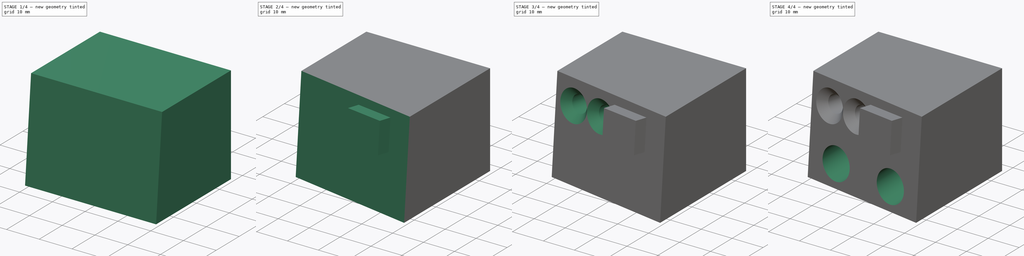
[diagram: build sequence overview — one tinted view per stage of 4, left to right]
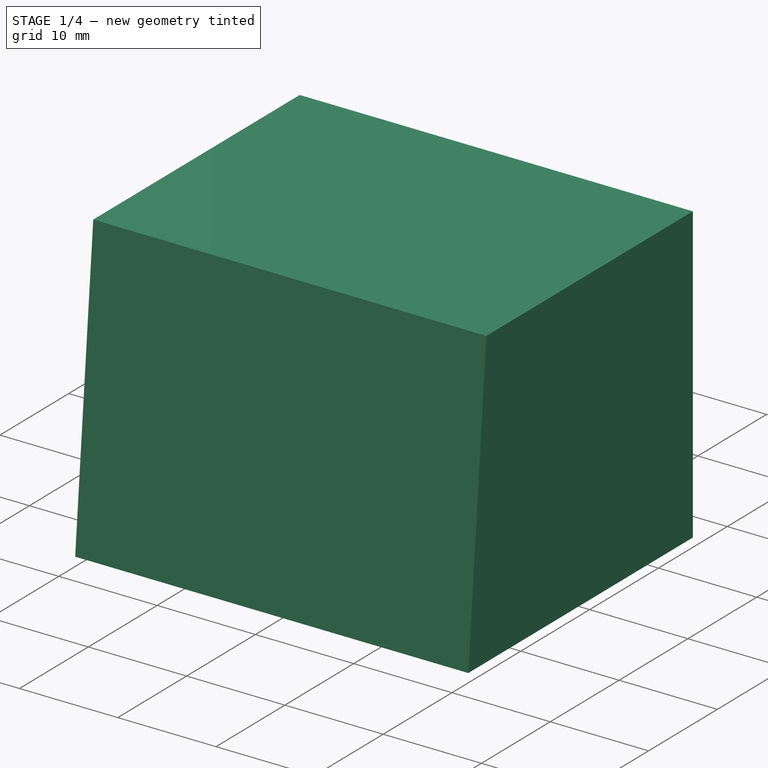
[diagram: stage 1 of 4 — iso view after this stage's code; geometry added in this stage tinted green]
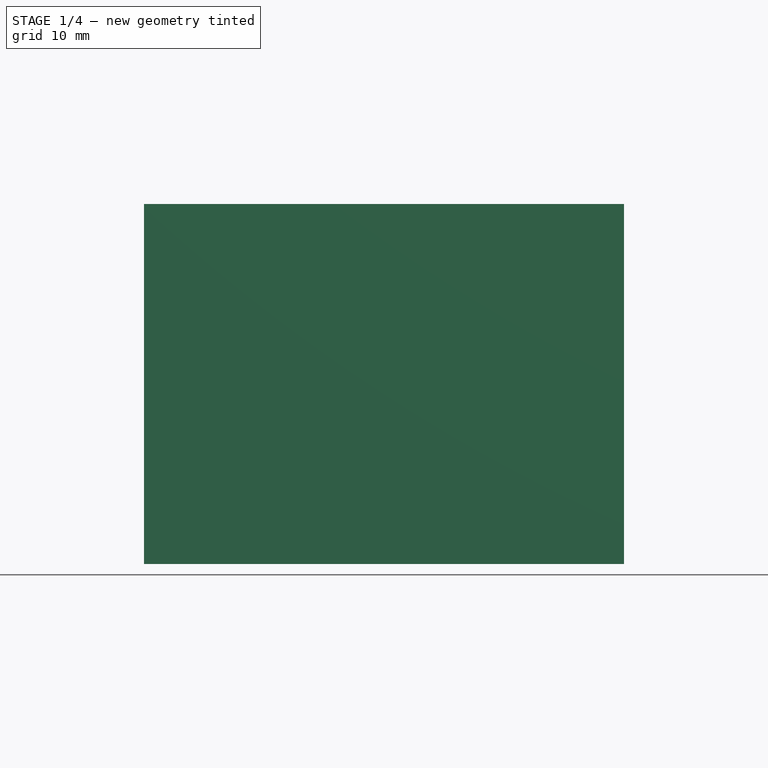
[diagram: stage 1 of 4 — front view after this stage's code; geometry added in this stage tinted green]
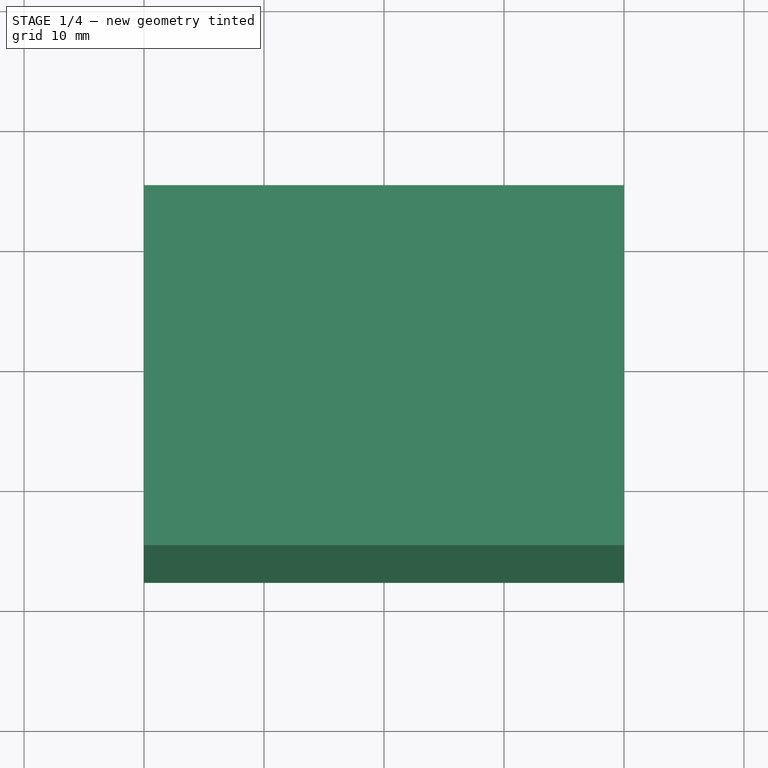
[diagram: stage 1 of 4 — top view after this stage's code; geometry added in this stage tinted green]
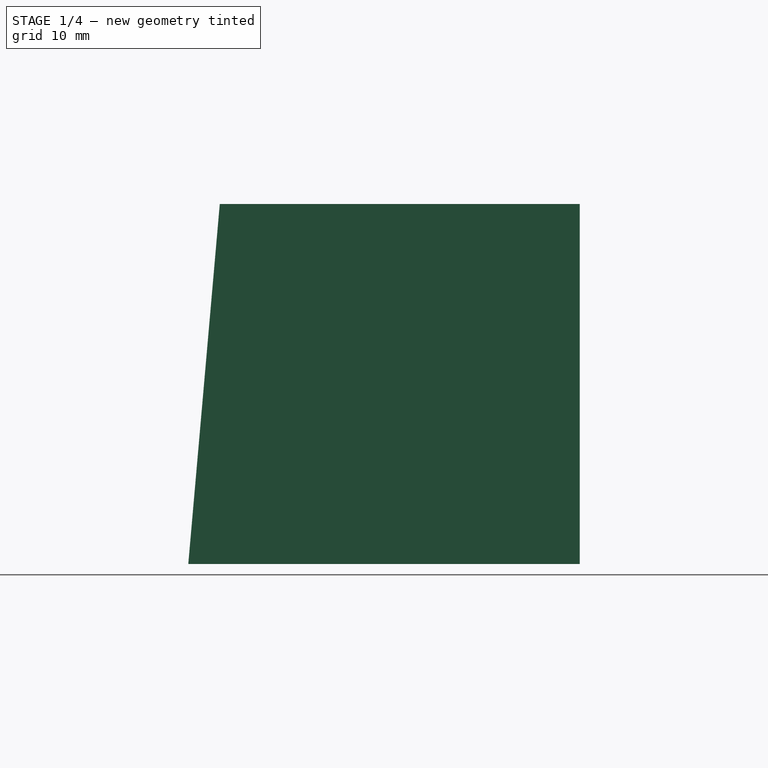
[diagram: stage 1 of 4 — right view after this stage's code; geometry added in this stage tinted green]
FCSTD DOCUMENT  (FreeCAD 0.18R16155 (Git))
Label: phone_arm
License: All rights reserved
LicenseURL: http://en.wikipedia.org/wiki/All_rights_reserved
objects: Sketcher::SketchObject×6, PartDesign::Plane×3, PartDesign::Pocket×3, PartDesign::Pad×2, PartDesign::Draft×2, PartDesign::Hole×2, PartDesign::Body×1
note: 26 computed .brp shape members not serialized (recipe doc carries the construction recipe); baked Part::Feature solids carry a one-line shape summary decoded from their .brp

FEATURE [Sketcher::SketchObject] Sketch
  MapMode = 5
  Support = -> [XY_Plane]
  sketch-geometry (4):
    g0: LineSegment StartX=-20 StartY=15 StartZ=0 EndX=20 EndY=15 EndZ=0
    g1: LineSegment StartX=20 StartY=15 StartZ=0 EndX=20 EndY=-15 EndZ=0
    g2: LineSegment StartX=20 StartY=-15 StartZ=0 EndX=-20 EndY=-15 EndZ=0
    g3: LineSegment StartX=-20 StartY=-15 StartZ=0 EndX=-20 EndY=15 EndZ=0
  constraints (11):
    c: Coincident(g0,g1)
    c: Coincident(g1,g2)
    c: Coincident(g2,g3)
    c: Coincident(g3,g0)
    c: Horizontal(g0)
    c: Horizontal(g2)
    c: Vertical(g1)
    c: Vertical(g3)
    c: Symmetric(g2,g0,g-1)
    c: DistanceY(g1,g1) = 30
    c: DistanceX(g0,g0) = 40
FEATURE [PartDesign::Pad] Pad
  Length = 30
  Length2 = 100
  Profile = -> Sketch
  Type = 0
FEATURE [PartDesign::Draft] Draft
  Angle = 5
  Base = -> Pad [Face3]
  BaseFeature = -> Pad
  NeutralPlane = -> Pad [Face6]
  PullDirection = -> Pad [Edge5]
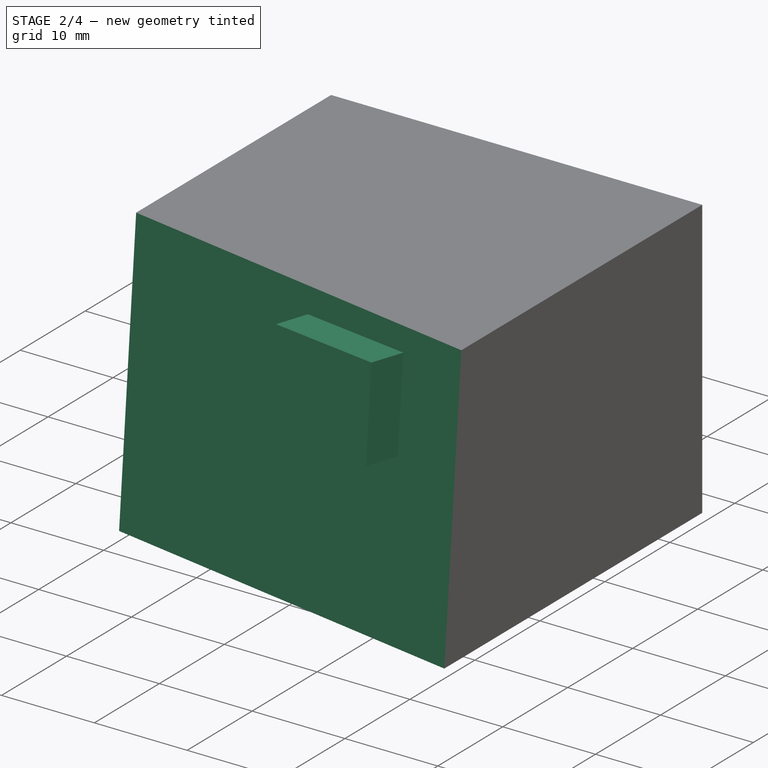
[diagram: stage 2 of 4 — iso view after this stage's code; geometry added in this stage tinted green]
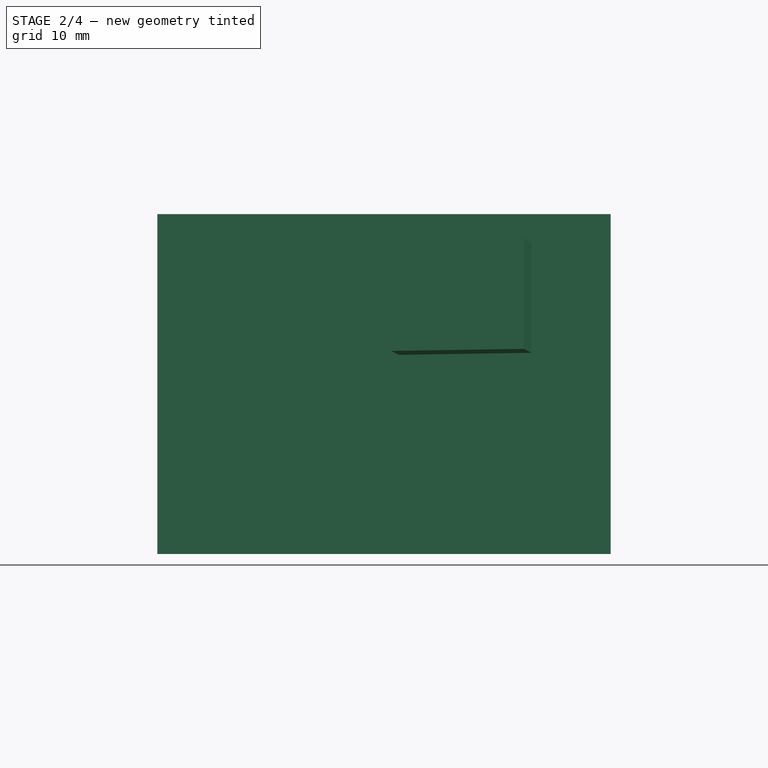
[diagram: stage 2 of 4 — front view after this stage's code; geometry added in this stage tinted green]
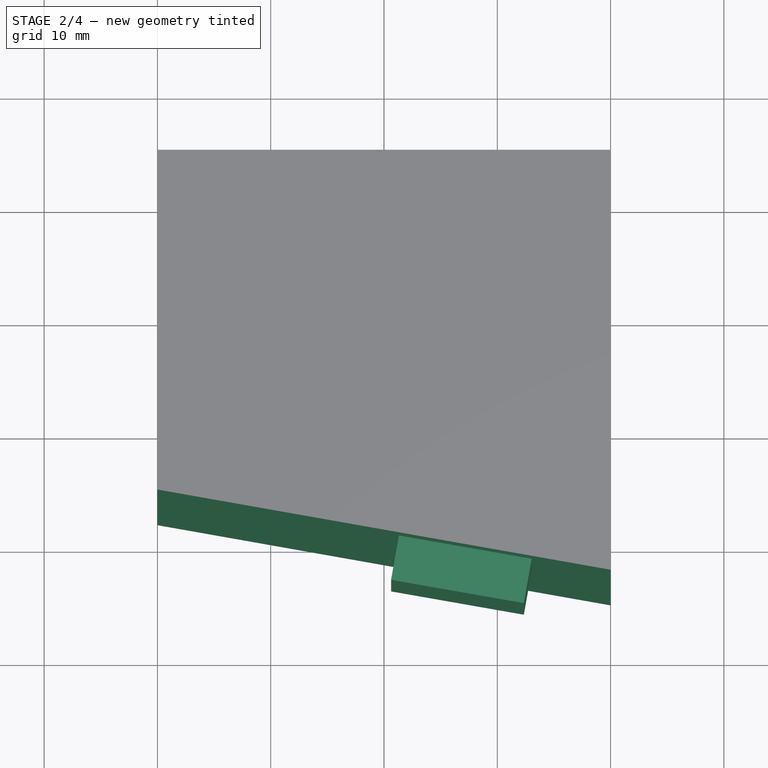
[diagram: stage 2 of 4 — top view after this stage's code; geometry added in this stage tinted green]
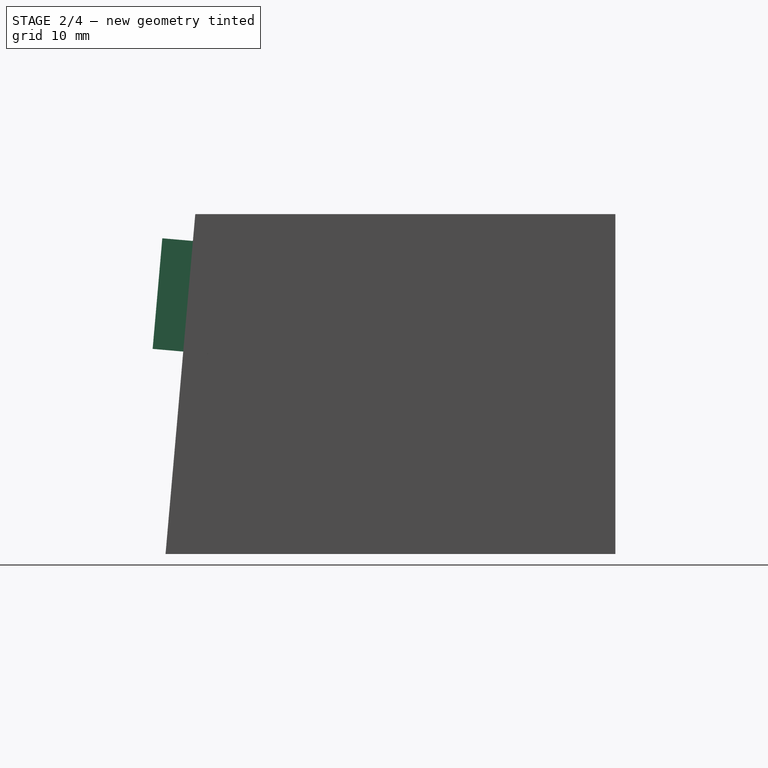
[diagram: stage 2 of 4 — right view after this stage's code; geometry added in this stage tinted green]
FEATURE [PartDesign::Draft] Draft001
  Angle = 10
  Base = -> Draft [Face3]
  BaseFeature = -> Draft
  NeutralPlane = -> Draft [Face4]
FEATURE [Sketcher::SketchObject] Sketch001
  ExternalGeometry = -> [Draft]
  MapMode = 5
  Placement = pos=(-3.6056,-20.3706,1.78219) rot=(0.991719,-0.094686,-0.086764;1.49182rad)
  Support = -> [Draft001]
  sketch-geometry (14):
    g0: LineSegment [constr] StartX=-16.6473 StartY=25.5785 StartZ=0 EndX=22.745 EndY=25.5785 EndZ=0
    g1: LineSegment StartX=22.745 StartY=25.5785 StartZ=0 EndX=22.745 EndY=15.7785 EndZ=0
    g2: LineSegment [constr] StartX=22.745 StartY=15.7785 StartZ=0 EndX=-16.6473 EndY=15.7785 EndZ=0
    g3: LineSegment StartX=-16.6473 StartY=15.7785 StartZ=0 EndX=-16.6473 EndY=25.5785 EndZ=0
    g4: GeomPoint X=0 Y=20.6785 Z=0
    g5: GeomPoint X=0 Y=15.7785 Z=0
    g6: GeomPoint X=0 Y=25.5785 Z=0
    g7: LineSegment StartX=5 StartY=25.5785 StartZ=0 EndX=16.9 EndY=25.5785 EndZ=0
    g8: LineSegment StartX=16.9 StartY=25.5785 StartZ=0 EndX=16.9 EndY=15.7785 EndZ=0
    g9: LineSegment StartX=16.9 StartY=15.7785 StartZ=0 EndX=5 EndY=15.7785 EndZ=0
    g10: LineSegment StartX=5 StartY=15.7785 StartZ=0 EndX=5 EndY=25.5785 EndZ=0
    g11: GeomPoint X=-10 Y=20.6785 Z=0
    g12: GeomPoint X=-10 Y=25.5785 Z=0
    g13: GeomPoint X=-10 Y=15.7785 Z=0
  constraints (34):
    c: Coincident(g0,g1)
    c: Coincident(g1,g2)
    c: Coincident(g2,g3)
    c: Coincident(g3,g0)
    c: Horizontal(g0)
    c: Horizontal(g2)
    c: Vertical(g1)
    c: Vertical(g3)
    c: DistanceY(g1,g1) = 9.8
    c: PointOnObject(g4,g-2)
    c: PointOnObject(g5,g2)
    c: PointOnObject(g6,g0)
    c: PointOnObject(g6,g-2)
    c: Symmetric(g5,g6,g4)
    c: Coincident(g7,g8)
    c: Coincident(g8,g9)
    c: Coincident(g9,g10)
    c: Coincident(g10,g7)
    c: Horizontal(g7)
    c: Horizontal(g9)
    c: Vertical(g8)
    c: Vertical(g10)
    c: PointOnObject(g7,g0)
    c: PointOnObject(g8,g2)
    c: DistanceX(g9,g9) = 11.9
    c: PointOnObject(g12,g0)
    c: PointOnObject(g13,g2)
    c: Symmetric(g13,g12,g11)
    c: Vertical(g13,g12)
    c: DistanceX(g11,g9) = 15
    c: DistanceX(g11,g4) = 10
    c: PointOnObject(g1,g-3)
    c: PointOnObject(g3,g-4)
    c: DistanceY(g1,g-3) = 3
FEATURE [PartDesign::Pad] Pad001
  BaseFeature = -> Draft001
  Length = 4
  Length2 = 100
  Profile = -> Sketch001
  Type = 0
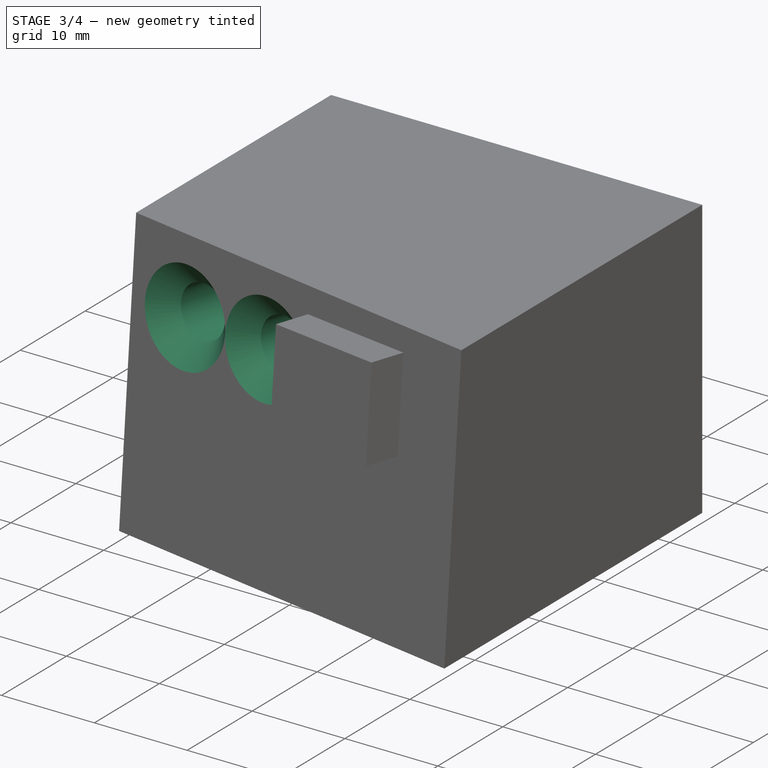
[diagram: stage 3 of 4 — iso view after this stage's code; geometry added in this stage tinted green]
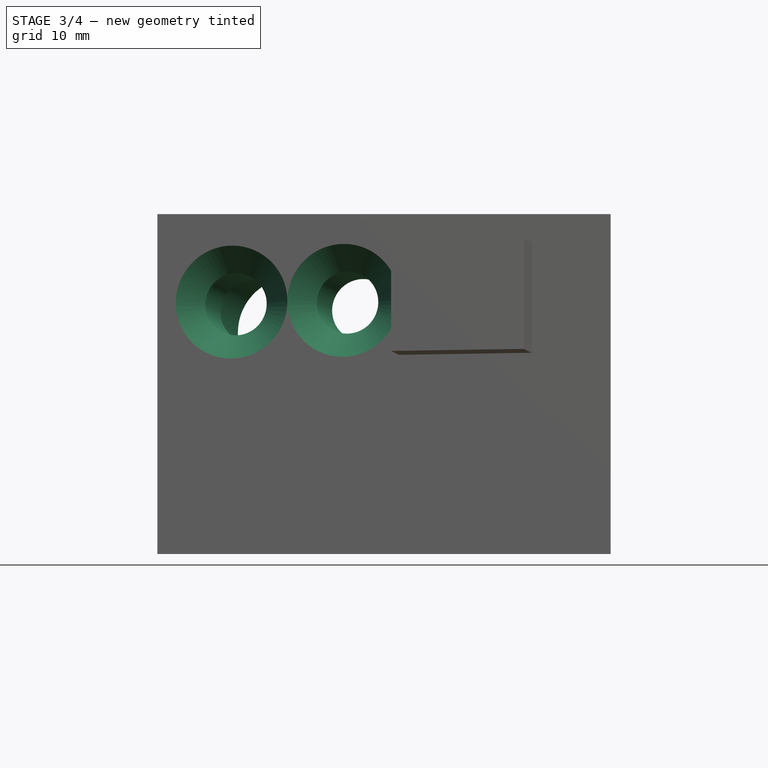
[diagram: stage 3 of 4 — front view after this stage's code; geometry added in this stage tinted green]
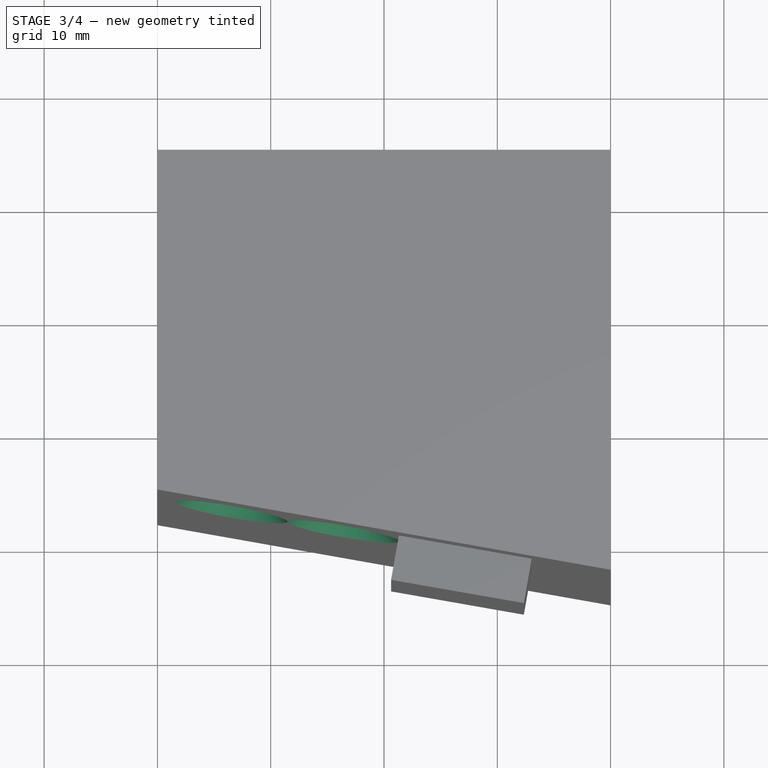
[diagram: stage 3 of 4 — top view after this stage's code; geometry added in this stage tinted green]
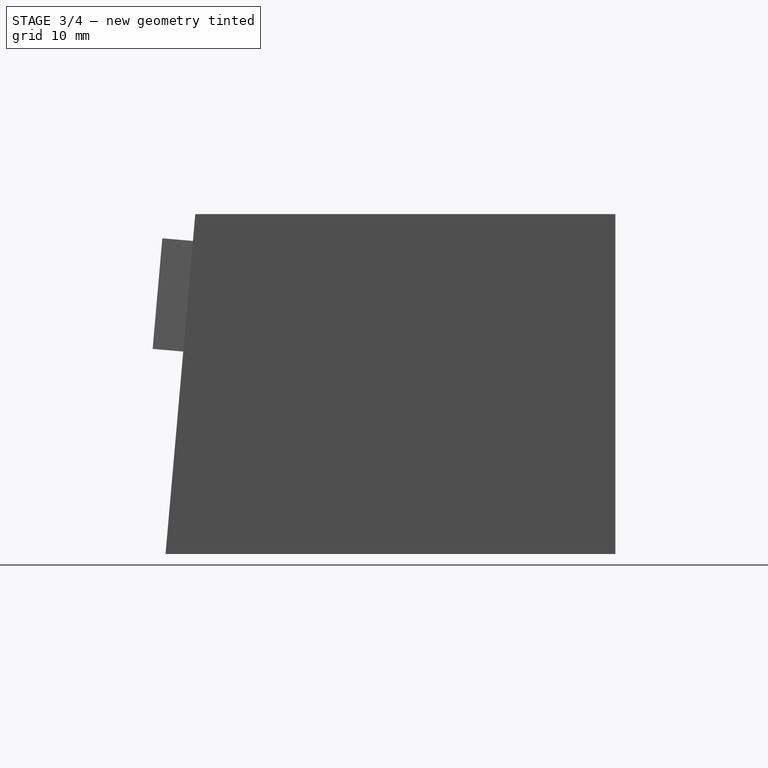
[diagram: stage 3 of 4 — right view after this stage's code; geometry added in this stage tinted green]
FEATURE [Sketcher::SketchObject] Sketch002
  ExternalGeometry = -> [Pad001]
  MapMode = 5
  Placement = pos=(-3.6056,-20.3706,1.78219) rot=(0.991719,-0.094686,-0.086764;1.49182rad)
  Support = -> [Pad001]
  sketch-geometry (3):
    g0: Circle CenterX=-10 CenterY=20.6785 CenterZ=0 NormalX=0 NormalY=0 NormalZ=1 AngleXU=0 Radius=1.93742
    g1: Circle CenterX=1.9e-15 CenterY=20.6785 CenterZ=0 NormalX=0 NormalY=0 NormalZ=1 AngleXU=0 Radius=2.1196
    g2: GeomPoint X=5 Y=20.6785 Z=0
  constraints (5):
    c: Horizontal(g1,g0)
    c: Symmetric(g-3,g-3,g2)
    c: Horizontal(g2,g1)
    c: DistanceX(g1,g2) = 5
    c: DistanceX(g0,g2) = 15
FEATURE [PartDesign::Hole] Hole
  BaseFeature = -> Pad001
  Depth = 25
  DepthType = 1
  Diameter = 5.5
  DrillPoint = 1
  DrillPointAngle = 118
  HoleCutCountersinkAngle = 90
  HoleCutDepth = 0
  HoleCutDiameter = 10
  HoleCutType = 2
  ModelActualThread = false
  Profile = -> Sketch002
  Tapered = false
  TaperedAngle = 90
  ThreadAngle = 0
  ThreadClass = 0
  ThreadCutOffInner = 0
  ThreadCutOffOuter = 0
  ThreadDirection = 0
  ThreadFit = 0
  ThreadPitch = 0
  ThreadSize = 6
  ThreadType = 1
  Threaded = false
FEATURE [PartDesign::Plane] DatumPlane
  AttachmentOffset = pos=(0,0,10) rot=(0,0,1;0rad)
  Length = 56.1027
  MapMode = 5
  Placement = pos=(-1.86912,-10.56,0.923876) rot=(0.059004,0.735993,0.674413;3.01299rad)
  ResizeMode = 0
  Support = -> [Hole]
  Width = 52.4472
FEATURE [Sketcher::SketchObject] Sketch003
  ExternalGeometry = -> [Hole]
  MapMode = 5
  Placement = pos=(-1.86912,-10.56,0.923876) rot=(0.059004,0.735993,0.674413;3.01299rad)
  Support = -> [DatumPlane]
  sketch-geometry (14):
    g0: LineSegment StartX=-9e-16 StartY=15.9442 StartZ=0 EndX=4.1 EndY=18.3114 EndZ=0
    g1: LineSegment StartX=4.1 StartY=18.3114 StartZ=0 EndX=4.1 EndY=23.0456 EndZ=0
    g2: LineSegment StartX=4.1 StartY=23.0456 StartZ=0 EndX=-1.8e-15 EndY=25.4128 EndZ=0
    g3: LineSegment StartX=-2e-15 StartY=25.4128 StartZ=0 EndX=-4.1 EndY=23.0456 EndZ=0
    g4: LineSegment StartX=-4.1 StartY=23.0456 StartZ=0 EndX=-4.1 EndY=18.3114 EndZ=0
    g5: LineSegment StartX=-4.1 StartY=18.3114 StartZ=0 EndX=-9e-16 EndY=15.9442 EndZ=0
    g6: Circle [constr] CenterX=-7e-16 CenterY=20.6785 CenterZ=0 NormalX=0 NormalY=0 NormalZ=1 AngleXU=0 Radius=4.73427
    g7: LineSegment StartX=10 StartY=15.9442 StartZ=0 EndX=14.1 EndY=18.3114 EndZ=0
    g8: LineSegment StartX=14.1 StartY=18.3114 StartZ=0 EndX=14.1 EndY=23.0456 EndZ=0
    g9: LineSegment StartX=14.1 StartY=23.0456 StartZ=0 EndX=10 EndY=25.4128 EndZ=0
    g10: LineSegment StartX=10 StartY=25.4128 StartZ=0 EndX=5.9 EndY=23.0456 EndZ=0
    g11: LineSegment StartX=5.9 StartY=23.0456 StartZ=0 EndX=5.9 EndY=18.3114 EndZ=0
    g12: LineSegment StartX=5.9 StartY=18.3114 StartZ=0 EndX=10 EndY=15.9442 EndZ=0
    g13: Circle [constr] CenterX=10 CenterY=20.6785 CenterZ=0 NormalX=0 NormalY=0 NormalZ=1 AngleXU=0 Radius=4.73427
  constraints (32):
    c: Coincident(g0,g1)
    c: Coincident(g1,g2)
    c: Coincident(g2,g3)
    c: Coincident(g3,g4)
    c: Coincident(g4,g5)
    c: Coincident(g5,g0)
    c: Equal(g0, g1-g5) x5
    c: PointOnObject(g0,g6)
    c: PointOnObject(g1,g6)
    c: PointOnObject(g2,g6)
    c: PointOnObject(g3,g6)
    c: PointOnObject(g4,g6)
    c: PointOnObject(g5,g6)
    c: Coincident(g6,g-3)
    c: Coincident(g7,g8)
    c: Coincident(g8,g9)
    c: Coincident(g9,g10)
    c: Coincident(g10,g11)
    c: Coincident(g11,g12)
    c: Coincident(g12,g7)
    c: Equal(g7, g8-g12) x5
    c: PointOnObject(g7,g13)
    c: PointOnObject(g8,g13)
    c: PointOnObject(g9,g13)
    c: PointOnObject(g10,g13)
    c: PointOnObject(g11,g13)
    c: PointOnObject(g12,g13)
    c: Coincident(g13,g-4)
    c: Vertical(g8)
    c: Vertical(g4)
    c: DistanceX(g10,g8) = 8.2
    c: DistanceX(g3,g1) = 8.2
FEATURE [PartDesign::Pocket] Pocket
  BaseFeature = -> Hole
  Length = 5
  Length2 = 100
  Profile = -> Sketch003
  Reversed = true
  Type = 1
FEATURE [PartDesign::Plane] DatumPlane001
  AttachmentOffset = pos=(0,0,15) rot=(0,0,1;0rad)
  Length = 56.1027
  MapMode = 5
  Placement = pos=(-1.00088,-5.65465,0.494718) rot=(0.059004,0.735993,0.674413;3.01299rad)
  ResizeMode = 0
  Support = -> [Pocket]
  Width = 52.4472
FEATURE [Sketcher::SketchObject] Sketch004
  ExternalGeometry = -> [Pocket]
  MapMode = 5
  Placement = pos=(-1.00088,-5.65465,0.494718) rot=(0.059004,0.735993,0.674413;3.01299rad)
  Support = -> [DatumPlane001]
  sketch-geometry (4):
    g0: ArcOfCircle CenterX=10 CenterY=20.6785 CenterZ=0 NormalX=0 NormalY=0 NormalZ=1 AngleXU=0 Radius=5 StartAngle=4.71239 EndAngle=7.85398
    g1: ArcOfCircle CenterX=-3e-16 CenterY=20.6785 CenterZ=0 NormalX=0 NormalY=0 NormalZ=1 AngleXU=0 Radius=5 StartAngle=1.5708 EndAngle=4.71239
    g2: LineSegment StartX=10 StartY=25.6785 StartZ=0 EndX=0 EndY=25.6785 EndZ=0
    g3: LineSegment StartX=10 StartY=15.6785 StartZ=0 EndX=3.6e-15 EndY=15.6785 EndZ=0
  constraints (8):
    c: Tangent(g0,g3) = 1.5708
    c: Tangent(g0,g2) = -1.5708
    c: Tangent(g2,g1) = -1.5708
    c: Tangent(g3,g1) = 1.5708
    c: Horizontal(g2)
    c: Coincident(g0,g-4)
    c: Coincident(g1,g-3)
    c: Distance(g1,g1) = 5
FEATURE [PartDesign::Pocket] Pocket001
  BaseFeature = -> Pocket
  Length = 5
  Length2 = 100
  Profile = -> Sketch004
  Reversed = true
  Type = 1
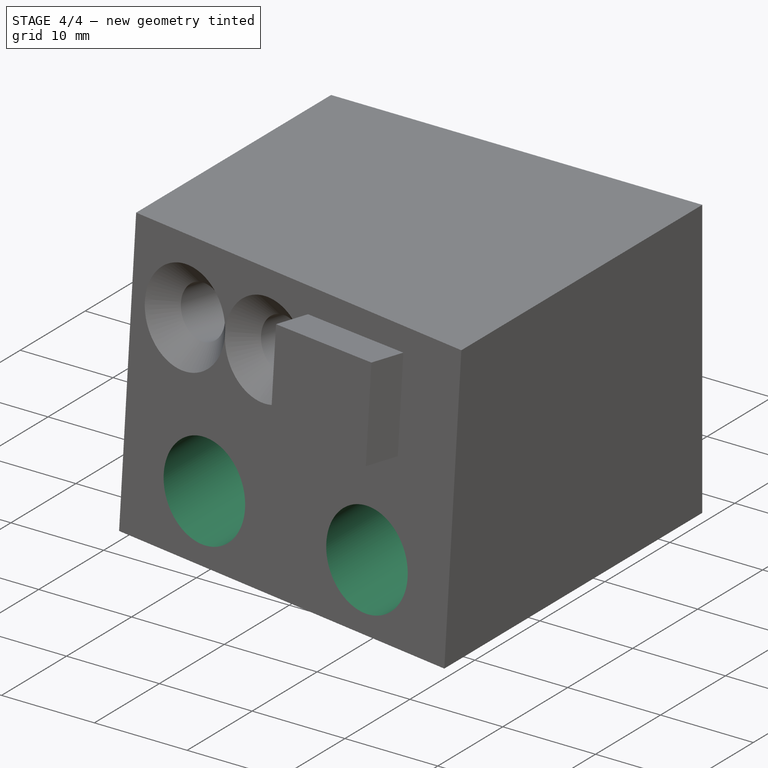
[diagram: stage 4 of 4 — iso view after this stage's code; geometry added in this stage tinted green]
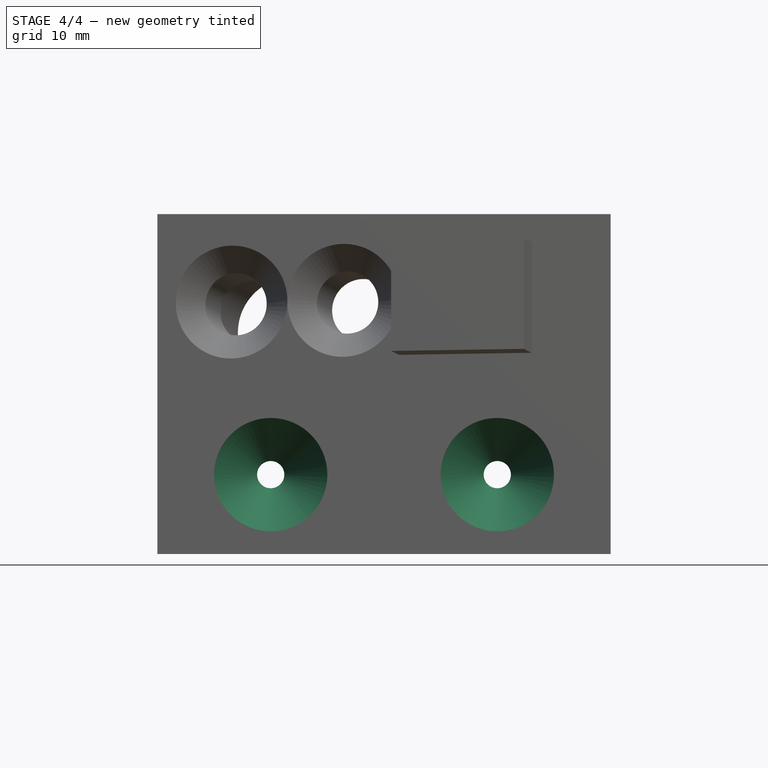
[diagram: stage 4 of 4 — front view after this stage's code; geometry added in this stage tinted green]
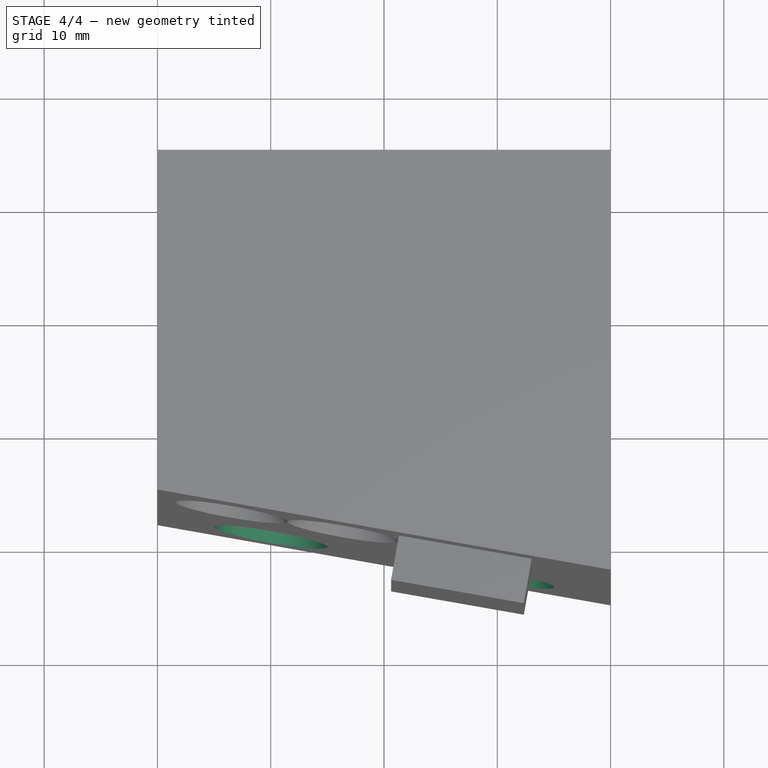
[diagram: stage 4 of 4 — top view after this stage's code; geometry added in this stage tinted green]
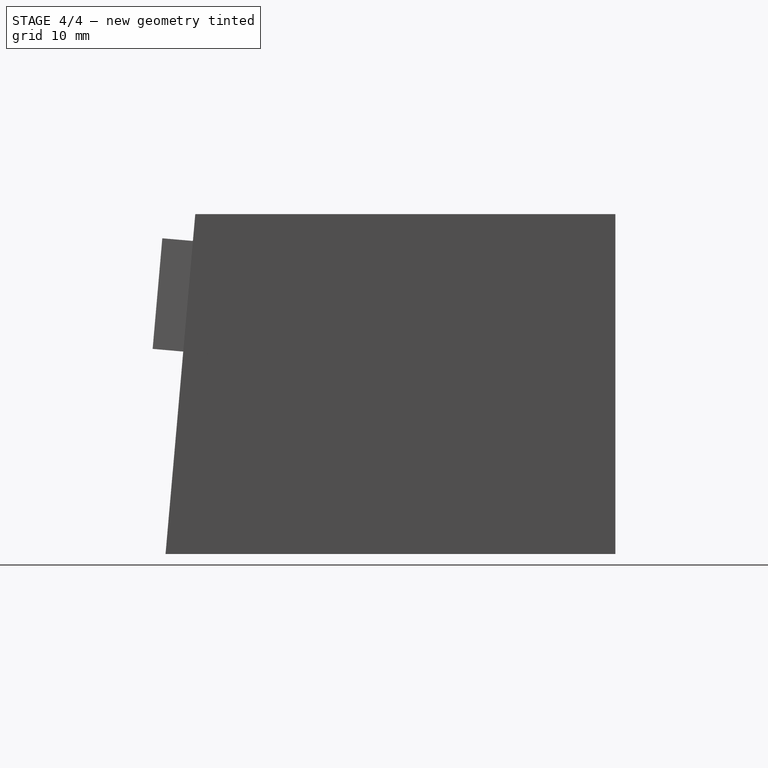
[diagram: stage 4 of 4 — right view after this stage's code; geometry added in this stage tinted green]
FEATURE [PartDesign::Plane] DatumPlane002
  AttachmentOffset = pos=(0,0,8) rot=(0,0,1;0rad)
  Length = 48
  MapMode = 5
  Placement = pos=(0,7,1.8e-15) rot=(1,0,0;1.5708rad)
  ResizeMode = 0
  Support = -> [Pocket001]
  Width = 48
FEATURE [Sketcher::SketchObject] Sketch005
  MapMode = 5
  Placement = pos=(0,7,1.8e-15) rot=(1,0,0;1.5708rad)
  Support = -> [DatumPlane002]
  sketch-geometry (2):
    g0: Circle CenterX=-10 CenterY=7 CenterZ=0 NormalX=0 NormalY=0 NormalZ=1 AngleXU=0 Radius=5
    g1: Circle CenterX=10 CenterY=7 CenterZ=0 NormalX=0 NormalY=0 NormalZ=1 AngleXU=0 Radius=5
  constraints (5):
    c: Symmetric(g1,g0,g-2)
    c: DistanceX(g0,g1) = 20
    c: Diameter(g0) = 10
    c: Equal(g0,g1)
    c: DistanceY(g-1,g1) = 7
FEATURE [PartDesign::Pocket] Pocket002
  BaseFeature = -> Pocket001
  Length = 5
  Length2 = 100
  Profile = -> Sketch005
  Reversed = true
  Type = 1
FEATURE [PartDesign::Hole] Hole001
  BaseFeature = -> Pocket002
  Depth = 25
  DepthType = 0
  Diameter = 5.5
  DrillPoint = 1
  DrillPointAngle = 118
  HoleCutCountersinkAngle = 90
  HoleCutDepth = 0
  HoleCutDiameter = 10
  HoleCutType = 2
  ModelActualThread = false
  Profile = -> Sketch005
  Tapered = false
  TaperedAngle = 90
  ThreadAngle = 0
  ThreadClass = 0
  ThreadCutOffInner = 0
  ThreadCutOffOuter = 0
  ThreadDirection = 0
  ThreadFit = 0
  ThreadPitch = 0
  ThreadSize = 6
  ThreadType = 1
  Threaded = false
FEATURE [PartDesign::Body] Body
  Group = -> [Sketch,Pad,Draft,Draft001,Sketch001,Pad001,Sketch002,Hole,DatumPlane,Sketch003,Pocket,DatumPlane001,Sketch004,Pocket001,DatumPlane002,Sketch005,Pocket002,Hole001]
  Origin = -> Origin
  Tip = -> Hole001
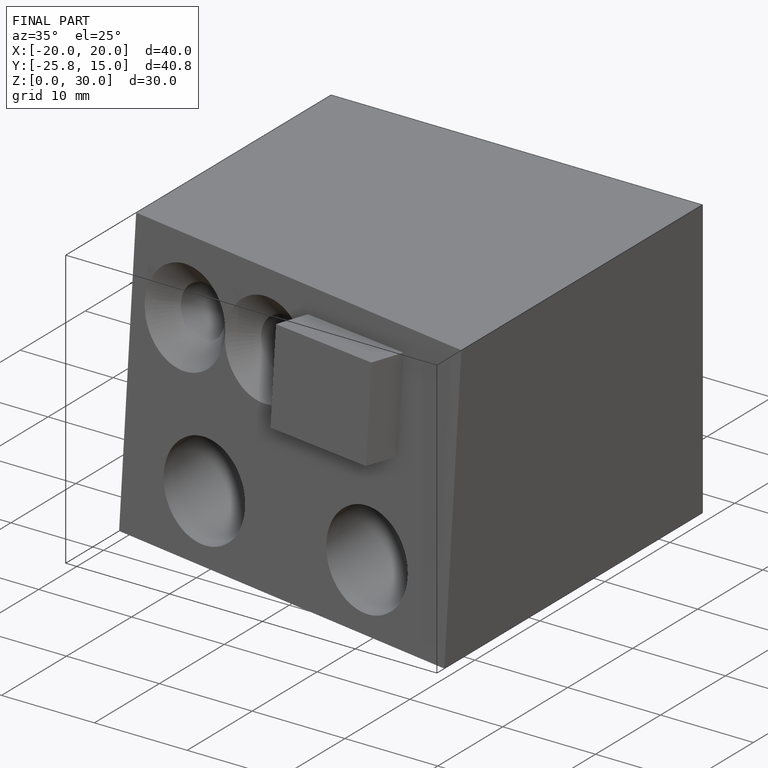
[diagram: finished part — iso view with bounding-box wireframe]
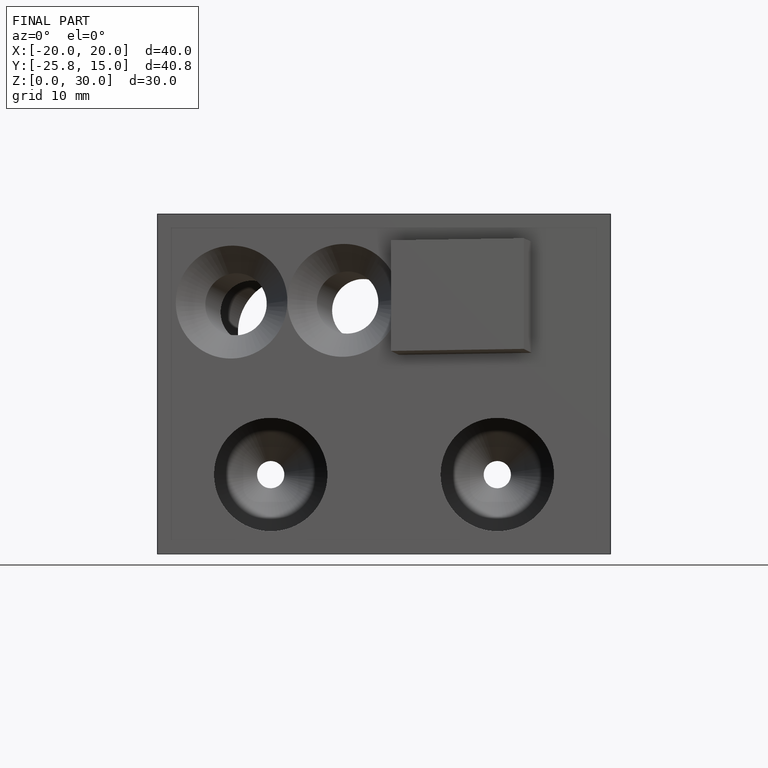
[diagram: finished part — front view with bounding-box wireframe]
